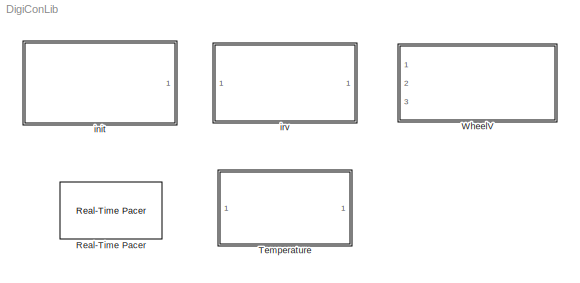
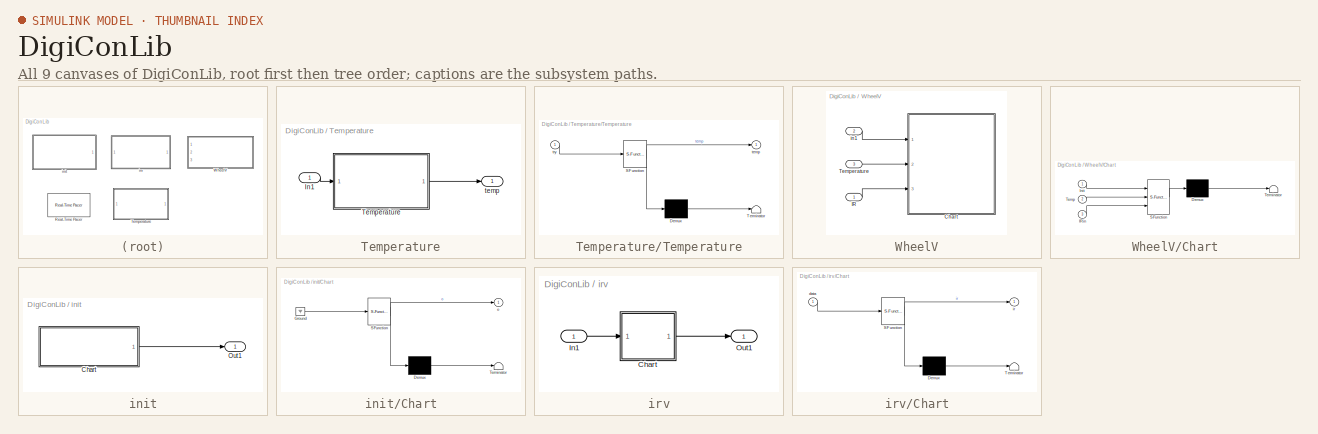
[diagram: thumbnail index - all 9 canvases of the model, root first then tree order]
MODEL DigiConLib
KIND library
BLOCK [Reference] Real-Time Pacer  REF=realtime_pacer_lib/Real-Time Pacer
  Ports = []
  SID = 29
  SourceBlock = realtime_pacer_lib/Real-Time Pacer
  SourceType = RealTime_Pacer
  simTimePerRealTime = 0.5
BLOCK [SubSystem] Temperature
  Ports = [1, 1]
  RequestExecContextInheritance = off
  SID = 27
  Variant = off
BLOCK [Inport] Temperature/In1
  IconDisplay = Port number
  SID = 30
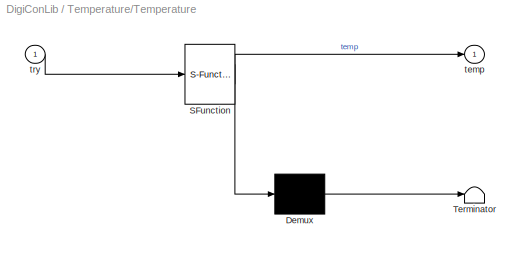
BLOCK [SubSystem] Temperature/Temperature
  ErrorFcn = Stateflow.Translate.translate
  PermitHierarchicalResolution = ExplicitOnly
  Ports = [1, 1]
  RequestExecContextInheritance = off
  SFBlockType = Chart
  SID = 31
  TreatAsAtomicUnit = on
  Variant = off
BLOCK [Demux] Temperature/Temperature/ Demux 
  Outputs = 1
  Ports = [1, 1]
  SID = 31::96
BLOCK [S-Function] Temperature/Temperature/ SFunction 
  EnableBusSupport = off
  FunctionName = sf_sfun
  PortCounts = [1 2]
  Ports = [1, 2]
  SFcnIsStateOwnerBlock = off
  SFunctionDeploymentMode = off
  SID = 31::95
  Tag = Stateflow S-Function DigiConLib 2
BLOCK [Terminator] Temperature/Temperature/ Terminator 
  SID = 31::97
BLOCK [Outport] Temperature/Temperature/temp
  IconDisplay = Port number
  SID = 31::91
BLOCK [Inport] Temperature/Temperature/try
  IconDisplay = Port number
  SID = 31::85
BLOCK [Outport] Temperature/temp
  IconDisplay = Port number
  SID = 32
BLOCK [SubSystem] WheelV
  Ports = [3]
  RequestExecContextInheritance = off
  SID = 28
  Variant = off
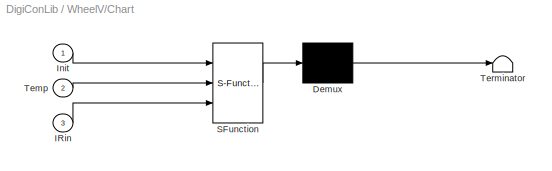
BLOCK [SubSystem] WheelV/Chart
  ErrorFcn = Stateflow.Translate.translate
  PermitHierarchicalResolution = ExplicitOnly
  Ports = [3]
  RequestExecContextInheritance = off
  SFBlockType = Chart
  SID = 36
  TreatAsAtomicUnit = on
  Variant = off
BLOCK [Demux] WheelV/Chart/ Demux 
  Outputs = 1
  Ports = [1, 1]
  SID = 36::95
BLOCK [S-Function] WheelV/Chart/ SFunction 
  EnableBusSupport = off
  FunctionName = sf_sfun
  PortCounts = [3 1]
  Ports = [3, 1]
  SFcnIsStateOwnerBlock = off
  SFunctionDeploymentMode = off
  SID = 36::94
  Tag = Stateflow S-Function DigiConLib 11
BLOCK [Terminator] WheelV/Chart/ Terminator 
  SID = 36::96
BLOCK [Inport] WheelV/Chart/IRin
  IconDisplay = Port number
  Port = 3
  SID = 36::90
BLOCK [Inport] WheelV/Chart/Init
  IconDisplay = Port number
  SID = 36::87
BLOCK [Inport] WheelV/Chart/Temp
  IconDisplay = Port number
  Port = 2
  SID = 36::89
BLOCK [Inport] WheelV/IR
  IconDisplay = Port number
  SID = 33
BLOCK [Inport] WheelV/Temperature
  IconDisplay = Port number
  Port = 3
  SID = 35
BLOCK [Inport] WheelV/in1
  IconDisplay = Port number
  Port = 2
  SID = 34
BLOCK [SubSystem] init
  Ports = [0, 1]
  RequestExecContextInheritance = off
  SID = 2
  Variant = off
BLOCK [SubSystem] init/Chart
  ErrorFcn = Stateflow.Translate.translate
  PermitHierarchicalResolution = ExplicitOnly
  Ports = [0, 1]
  RequestExecContextInheritance = off
  SFBlockType = Chart
  SID = 1
  TreatAsAtomicUnit = on
  Variant = off
BLOCK [Demux] init/Chart/ Demux 
  Outputs = 1
  Ports = [1, 1]
  SID = 1::92
BLOCK [Ground] init/Chart/ Ground 
  SID = 1::94
BLOCK [S-Function] init/Chart/ SFunction 
  EnableBusSupport = off
  FunctionName = sf_sfun
  PortCounts = [1 2]
  Ports = [1, 2]
  SFcnIsStateOwnerBlock = off
  SFunctionDeploymentMode = off
  SID = 1::91
  Tag = Stateflow S-Function DigiConLib 3
BLOCK [Terminator] init/Chart/ Terminator 
  SID = 1::93
BLOCK [Outport] init/Chart/o
  IconDisplay = Port number
  SID = 1::90
BLOCK [Outport] init/Out1
  IconDisplay = Port number
  SID = 7
BLOCK [SubSystem] irv
  Ports = [1, 1]
  RequestExecContextInheritance = off
  SID = 4
  Variant = off
BLOCK [SubSystem] irv/Chart
  ErrorFcn = Stateflow.Translate.translate
  PermitHierarchicalResolution = ExplicitOnly
  Ports = [1, 1]
  RequestExecContextInheritance = off
  SFBlockType = Chart
  SID = 3
  TreatAsAtomicUnit = on
  Variant = off
BLOCK [Demux] irv/Chart/ Demux 
  Outputs = 1
  Ports = [1, 1]
  SID = 3::90
BLOCK [S-Function] irv/Chart/ SFunction 
  EnableBusSupport = off
  FunctionName = sf_sfun
  PortCounts = [1 2]
  Ports = [1, 2]
  SFcnIsStateOwnerBlock = off
  SFunctionDeploymentMode = off
  SID = 3::89
  Tag = Stateflow S-Function DigiConLib 1
BLOCK [Terminator] irv/Chart/ Terminator 
  SID = 3::91
BLOCK [Inport] irv/Chart/data
  IconDisplay = Port number
  SID = 3::88
BLOCK [Outport] irv/Chart/ir
  IconDisplay = Port number
  SID = 3::85
BLOCK [Inport] irv/In1
  IconDisplay = Port number
  SID = 10
BLOCK [Outport] irv/Out1
  IconDisplay = Port number
  SID = 9
LINE Temperature/In1:1 -> Temperature/Temperature:1
LINE Temperature/Temperature/ Demux :1 -> Temperature/Temperature/ Terminator :1
LINE Temperature/Temperature/ SFunction :1 -> Temperature/Temperature/ Demux :1
LINE Temperature/Temperature/ SFunction :2 -> Temperature/Temperature/temp:1
LINE Temperature/Temperature/try:1 -> Temperature/Temperature/ SFunction :1
LINE Temperature/Temperature:1 -> Temperature/temp:1
LINE WheelV/Chart/ Demux :1 -> WheelV/Chart/ Terminator :1
LINE WheelV/Chart/ SFunction :1 -> WheelV/Chart/ Demux :1
LINE WheelV/Chart/IRin:1 -> WheelV/Chart/ SFunction :3
LINE WheelV/Chart/Init:1 -> WheelV/Chart/ SFunction :1
LINE WheelV/Chart/Temp:1 -> WheelV/Chart/ SFunction :2
LINE WheelV/IR:1 -> WheelV/Chart:3
LINE WheelV/Temperature:1 -> WheelV/Chart:2
LINE WheelV/in1:1 -> WheelV/Chart:1
LINE init/Chart/ Demux :1 -> init/Chart/ Terminator :1
LINE init/Chart/ Ground :1 -> init/Chart/ SFunction :1
LINE init/Chart/ SFunction :1 -> init/Chart/ Demux :1
LINE init/Chart/ SFunction :2 -> init/Chart/o:1
LINE init/Chart:1 -> init/Out1:1
LINE irv/Chart/ Demux :1 -> irv/Chart/ Terminator :1
LINE irv/Chart/ SFunction :1 -> irv/Chart/ Demux :1
LINE irv/Chart/ SFunction :2 -> irv/Chart/ir:1
LINE irv/Chart/data:1 -> irv/Chart/ SFunction :1
LINE irv/Chart:1 -> irv/Out1:1
LINE irv/In1:1 -> irv/Chart:1
CHART irv/Chart states=2 transitions=1
  STATE_LABEL 'rState = irv'
  STATE_LABEL 'RANGE\\nen,du:\\nir=irv'
CHART Temperature/Temperature states=2 transitions=1
  STATE_LABEL 'y= Temper'
  STATE_LABEL 'temp\\nen,du:\\ntemp=Temper;'
CHART init/Chart states=2 transitions=1
  STATE_LABEL 'A1\\nen:\\ntcpInit;\\no = 1;'
  STATE_LABEL 'tcpInit'
CHART WheelV/Chart states=12 transitions=18
  STATE_LABEL 'Begin1\\n'
  STATE_LABEL 'off\\nen,du:\\nWheelV(0,0);\\n'
  STATE_LABEL 'on\\n'
  STATE_LABEL 'GoBack\\nentry:\\nWheelV(-0.2,-0.2);\\n'
  STATE_LABEL 'GoForward\\nentry,du:\\nWheelV(0.05,0.05);\\n'
  STATE_LABEL 'Rightturn3\\nentry,du:\\n WheelV(-0.2,0.2);\\n'
  STATE_LABEL 'leftturn3\\nentry,du:\\n WheelV(0.2,-0.2);\\n'
  STATE_LABEL 'Leftturn3\\nentry,du:\\nWheelV(0.3,-0.2);\\n'
  STATE_LABEL 'turn_right2\\nentry,du:\\nWheelV(-0.2,0.3);\\n'
  STATE_LABEL 'Leftturn2\\nentry,du:\\n WheelV(0.2,-0.1);'
  STATE_LABEL 'SharpRight\\nentry,du:\\nWheelV(-0.1,0.2);\\n'
  STATE_LABEL 'WheelV(u1,u2)'
